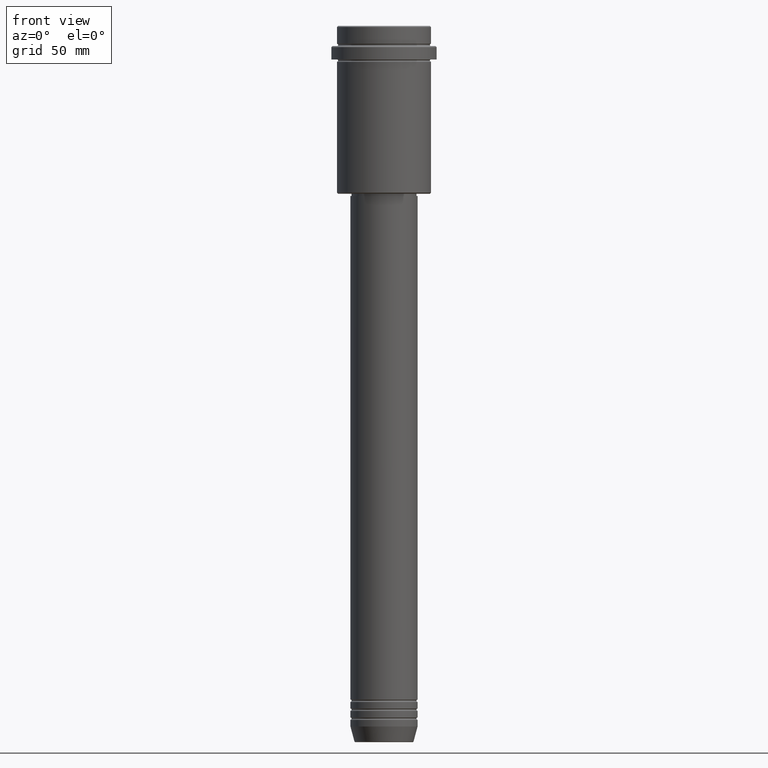
[diagram: clean part render]
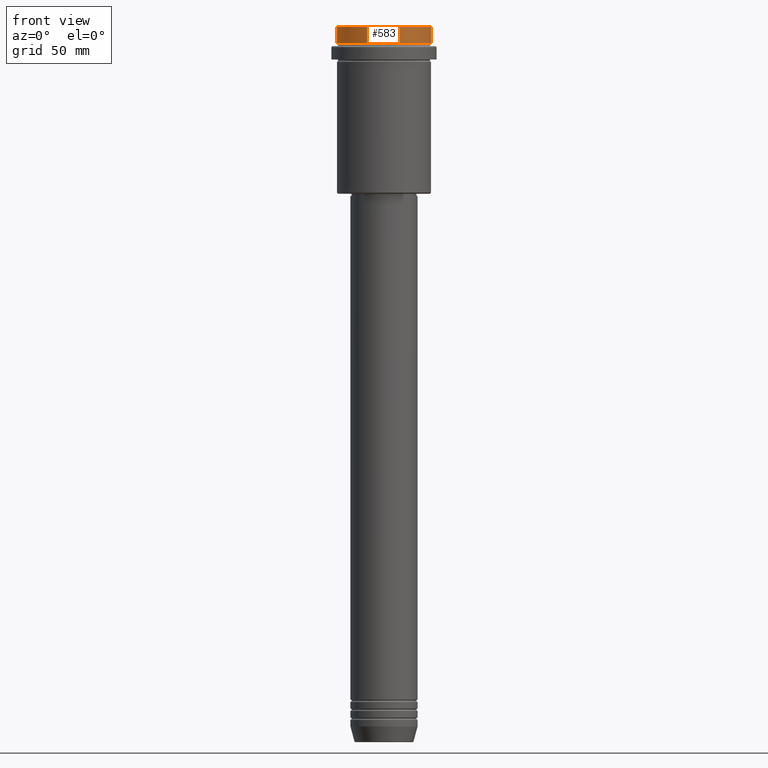
[diagram: same view with one face highlighted and labeled with its STEP entity id]
A machine part, front view. The second image highlights one B-rep face of the part: STEP entity #583.
In plain terms, the highlighted cylindrical surface (partial cylindrical patch) has radius 21 mm, axis along (-0, -0, 1).
Its self-contained STEP definition (entity closure, byte-faithful):
#30 = VERTEX_POINT ( 'NONE', #319 ) ;
#92 = CARTESIAN_POINT ( 'NONE',  ( 0.000000000000000000, 0.000000000000000000, -7.999999999999998224 ) ) ;
#106 = DIRECTION ( 'NONE',  ( 0.000000000000000000, 0.000000000000000000, -1.000000000000000000 ) ) ;
#108 = CARTESIAN_POINT ( 'NONE',  ( 0.000000000000000000, 0.000000000000000000, 0.000000000000000000 ) ) ;
#152 = EDGE_CURVE ( 'NONE', #30, #1370, #476, .T. ) ;
#230 = ORIENTED_EDGE ( 'NONE', *, *, #152, .F. ) ;
#319 = CARTESIAN_POINT ( 'NONE',  ( -21.00000000000000000, 2.571758278209441661E-15, -7.999999999999998224 ) ) ;
#365 = CARTESIAN_POINT ( 'NONE',  ( -21.00000000000000000, 2.571758278209441661E-15, 0.000000000000000000 ) ) ;
#379 = EDGE_CURVE ( 'NONE', #1036, #1350, #644, .T. ) ;
#468 = CIRCLE ( 'NONE', #985, 21.00000000000000000 ) ;
#476 = LINE ( 'NONE', #365, #485 ) ;
#485 = VECTOR ( 'NONE', #1211, 1000.000000000000000 ) ;
#541 = DIRECTION ( 'NONE',  ( -0.000000000000000000, -0.000000000000000000, 1.000000000000000000 ) ) ;
#556 = DIRECTION ( 'NONE',  ( 1.000000000000000000, 0.000000000000000000, 0.000000000000000000 ) ) ;
#582 = CARTESIAN_POINT ( 'NONE',  ( 21.00000000000000000, 0.000000000000000000, -7.999999999999998224 ) ) ;
#583 = ADVANCED_FACE ( 'NONE', ( #676 ), #1318, .T. ) ;
#584 = DIRECTION ( 'NONE',  ( -0.000000000000000000, -0.000000000000000000, 1.000000000000000000 ) ) ;
#597 = EDGE_LOOP ( 'NONE', ( #230, #628, #1137, #707 ) ) ;
#628 = ORIENTED_EDGE ( 'NONE', *, *, #1381, .T. ) ;
#636 = CARTESIAN_POINT ( 'NONE',  ( 0.000000000000000000, 0.000000000000000000, -0.4999999999999553690 ) ) ;
#644 = LINE ( 'NONE', #853, #804 ) ;
#676 = FACE_OUTER_BOUND ( 'NONE', #597, .T. ) ;
#707 = ORIENTED_EDGE ( 'NONE', *, *, #986, .T. ) ;
#715 = AXIS2_PLACEMENT_3D ( 'NONE', #636, #106, #556 ) ;
#773 = DIRECTION ( 'NONE',  ( -0.000000000000000000, -0.000000000000000000, 1.000000000000000000 ) ) ;
#804 = VECTOR ( 'NONE', #773, 1000.000000000000000 ) ;
#853 = CARTESIAN_POINT ( 'NONE',  ( 21.00000000000000000, 0.000000000000000000, 0.000000000000000000 ) ) ;
#974 = DIRECTION ( 'NONE',  ( 1.000000000000000000, 0.000000000000000000, 0.000000000000000000 ) ) ;
#981 = CIRCLE ( 'NONE', #715, 21.00000000000000000 ) ;
#985 = AXIS2_PLACEMENT_3D ( 'NONE', #92, #541, #974 ) ;
#986 = EDGE_CURVE ( 'NONE', #1350, #1370, #981, .T. ) ;
#1021 = AXIS2_PLACEMENT_3D ( 'NONE', #108, #584, #1096 ) ;
#1036 = VERTEX_POINT ( 'NONE', #582 ) ;
#1096 = DIRECTION ( 'NONE',  ( 1.000000000000000000, 0.000000000000000000, 0.000000000000000000 ) ) ;
#1137 = ORIENTED_EDGE ( 'NONE', *, *, #379, .T. ) ;
#1178 = CARTESIAN_POINT ( 'NONE',  ( -21.00000000000000000, 2.571758278209441661E-15, -0.4999999999999553690 ) ) ;
#1211 = DIRECTION ( 'NONE',  ( -0.000000000000000000, -0.000000000000000000, 1.000000000000000000 ) ) ;
#1310 = CARTESIAN_POINT ( 'NONE',  ( 21.00000000000000000, 0.000000000000000000, -0.4999999999999553690 ) ) ;
#1318 = CYLINDRICAL_SURFACE ( 'NONE', #1021, 21.00000000000000000 ) ;
#1350 = VERTEX_POINT ( 'NONE', #1310 ) ;
#1370 = VERTEX_POINT ( 'NONE', #1178 ) ;
#1381 = EDGE_CURVE ( 'NONE', #30, #1036, #468, .T. ) ;